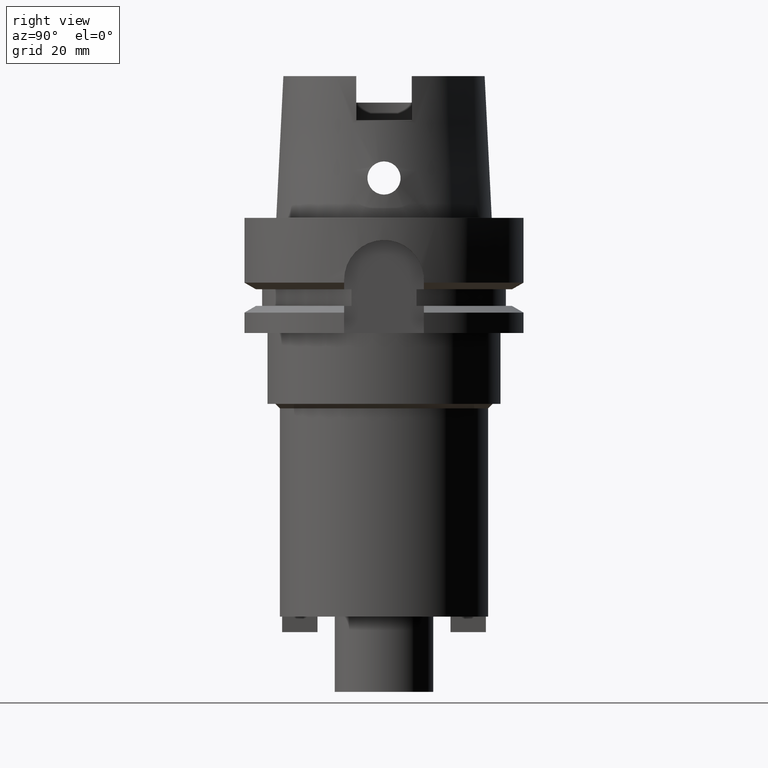
[diagram: clean part render]
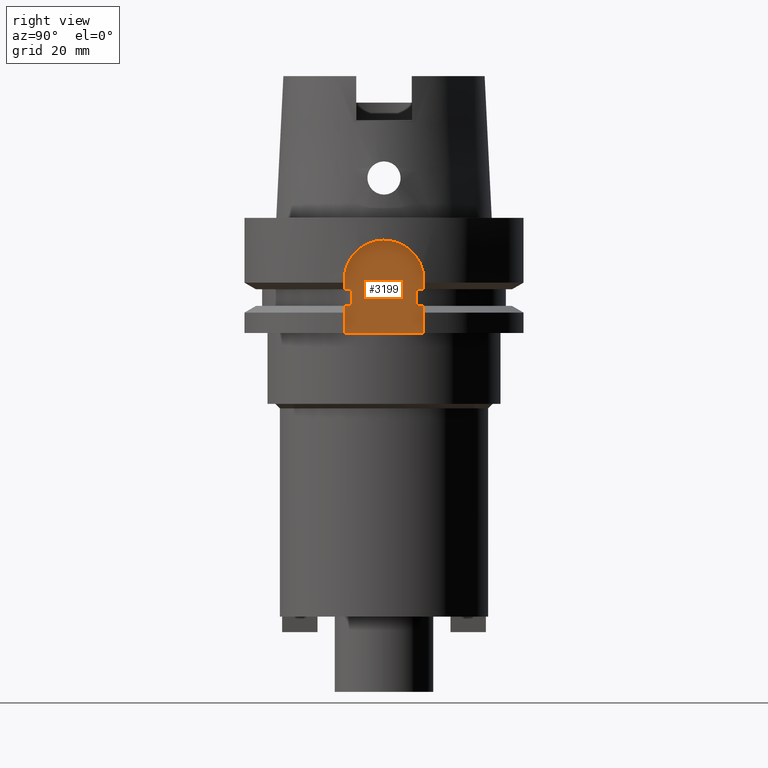
[diagram: same view with one face highlighted and labeled with its STEP entity id]
A machine part, right view. The second image highlights one B-rep face of the part: STEP entity #3199.
In plain terms, the highlighted planar face has unit normal (1, 0, 0).
Its self-contained STEP definition (entity closure, byte-faithful):
#723=DIRECTION('',(2.366280491871E-14,1.E0,0.E0));
#724=VECTOR('',#723,1.651530771650E0);
#725=CARTESIAN_POINT('',(2.65E1,7.348469228350E0,-1.6125E1));
#726=LINE('',#725,#724);
#885=DIRECTION('',(-2.366280491871E-14,1.E0,0.E0));
#886=VECTOR('',#885,1.651530771650E0);
#887=CARTESIAN_POINT('',(2.65E1,-9.E0,-1.6125E1));
#888=LINE('',#887,#886);
#983=DIRECTION('',(0.E0,1.E0,0.E0));
#984=VECTOR('',#983,1.8E1);
#985=CARTESIAN_POINT('',(2.65E1,-9.E0,-2.6E1));
#986=LINE('',#985,#984);
#1067=DIRECTION('',(0.E0,0.E0,1.E0));
#1068=VECTOR('',#1067,6.125E0);
#1069=CARTESIAN_POINT('',(2.65E1,-9.E0,-2.6E1));
#1070=LINE('',#1069,#1068);
#1074=DIRECTION('',(-2.366280491871E-14,1.E0,0.E0));
#1075=VECTOR('',#1074,1.651530771650E0);
#1076=CARTESIAN_POINT('',(2.65E1,-9.E0,-1.9875E1));
#1077=LINE('',#1076,#1075);
#1081=DIRECTION('',(0.E0,0.E0,1.E0));
#1082=VECTOR('',#1081,2.125E0);
#1083=CARTESIAN_POINT('',(2.65E1,-9.E0,-1.6125E1));
#1084=LINE('',#1083,#1082);
#1088=CARTESIAN_POINT('',(2.65E1,0.E0,-1.4E1));
#1089=DIRECTION('',(-1.E0,0.E0,0.E0));
#1090=DIRECTION('',(0.E0,-1.E0,0.E0));
#1091=AXIS2_PLACEMENT_3D('',#1088,#1089,#1090);
#1096=CARTESIAN_POINT('',(2.65E1,0.E0,-1.4E1));
#1097=DIRECTION('',(-1.E0,0.E0,0.E0));
#1098=DIRECTION('',(0.E0,0.E0,1.E0));
#1099=AXIS2_PLACEMENT_3D('',#1096,#1097,#1098);
#1104=DIRECTION('',(0.E0,0.E0,-1.E0));
#1105=VECTOR('',#1104,2.125E0);
#1106=CARTESIAN_POINT('',(2.65E1,9.E0,-1.4E1));
#1107=LINE('',#1106,#1105);
#1111=DIRECTION('',(2.366280491871E-14,1.E0,0.E0));
#1112=VECTOR('',#1111,1.651530771650E0);
#1113=CARTESIAN_POINT('',(2.65E1,7.348469228350E0,-1.9875E1));
#1114=LINE('',#1113,#1112);
#1118=DIRECTION('',(0.E0,0.E0,-1.E0));
#1119=VECTOR('',#1118,6.125E0);
#1120=CARTESIAN_POINT('',(2.65E1,9.E0,-1.9875E1));
#1121=LINE('',#1120,#1119);
#1213=DIRECTION('',(0.E0,0.E0,-1.E0));
#1214=VECTOR('',#1213,3.75E0);
#1215=CARTESIAN_POINT('',(2.65E1,-7.348469228350E0,-1.6125E1));
#1216=LINE('',#1215,#1214);
#1389=DIRECTION('',(0.E0,0.E0,1.E0));
#1390=VECTOR('',#1389,3.75E0);
#1391=CARTESIAN_POINT('',(2.65E1,7.348469228350E0,-1.9875E1));
#1392=LINE('',#1391,#1390);
#2280=CARTESIAN_POINT('',(2.65E1,-9.E0,-2.6E1));
#2281=VERTEX_POINT('',#2280);
#2282=CARTESIAN_POINT('',(2.65E1,9.E0,-2.6E1));
#2283=VERTEX_POINT('',#2282);
#2402=CARTESIAN_POINT('',(2.65E1,-7.348469228350E0,-1.9875E1));
#2404=VERTEX_POINT('',#2402);
#2405=CARTESIAN_POINT('',(2.65E1,-9.E0,-1.9875E1));
#2406=VERTEX_POINT('',#2405);
#2417=CARTESIAN_POINT('',(2.65E1,9.E0,-1.9875E1));
#2418=VERTEX_POINT('',#2417);
#2419=CARTESIAN_POINT('',(2.65E1,7.348469228350E0,-1.9875E1));
#2420=VERTEX_POINT('',#2419);
#2459=CARTESIAN_POINT('',(2.65E1,-9.E0,-1.6125E1));
#2461=VERTEX_POINT('',#2459);
#2466=CARTESIAN_POINT('',(2.65E1,-9.E0,-1.4E1));
#2467=VERTEX_POINT('',#2466);
#2468=CARTESIAN_POINT('',(2.65E1,-7.348469228350E0,-1.6125E1));
#2469=VERTEX_POINT('',#2468);
#2470=CARTESIAN_POINT('',(2.65E1,0.E0,-5.E0));
#2471=CARTESIAN_POINT('',(2.65E1,9.E0,-1.4E1));
#2472=VERTEX_POINT('',#2470);
#2473=VERTEX_POINT('',#2471);
#2474=CARTESIAN_POINT('',(2.65E1,9.E0,-1.6125E1));
#2475=VERTEX_POINT('',#2474);
#2476=CARTESIAN_POINT('',(2.65E1,7.348469228350E0,-1.6125E1));
#2477=VERTEX_POINT('',#2476);
#3170=CARTESIAN_POINT('',(2.65E1,0.E0,0.E0));
#3171=DIRECTION('',(1.E0,0.E0,0.E0));
#3172=DIRECTION('',(0.E0,0.E0,1.E0));
#3173=AXIS2_PLACEMENT_3D('',#3170,#3171,#3172);
#3174=PLANE('',#3173);
#3175=ORIENTED_EDGE('',*,*,#3103,.F.);
#3177=ORIENTED_EDGE('',*,*,#3176,.T.);
#3179=ORIENTED_EDGE('',*,*,#3178,.T.);
#3181=ORIENTED_EDGE('',*,*,#3180,.F.);
#3182=ORIENTED_EDGE('',*,*,#3044,.F.);
#3184=ORIENTED_EDGE('',*,*,#3183,.T.);
#3186=ORIENTED_EDGE('',*,*,#3185,.T.);
#3188=ORIENTED_EDGE('',*,*,#3187,.T.);
#3190=ORIENTED_EDGE('',*,*,#3189,.T.);
#3191=ORIENTED_EDGE('',*,*,#2933,.F.);
#3193=ORIENTED_EDGE('',*,*,#3192,.F.);
#3195=ORIENTED_EDGE('',*,*,#3194,.T.);
#3196=ORIENTED_EDGE('',*,*,#3160,.T.);
#3197=EDGE_LOOP('',(#3175,#3177,#3179,#3181,#3182,#3184,#3186,#3188,#3190,#3191,
#3193,#3195,#3196));
#3198=FACE_OUTER_BOUND('',#3197,.F.);
#1092=CIRCLE('',#1091,9.E0);
#1100=CIRCLE('',#1099,9.E0);
#2933=EDGE_CURVE('',#2477,#2475,#726,.T.);
#3044=EDGE_CURVE('',#2461,#2469,#888,.T.);
#3103=EDGE_CURVE('',#2281,#2283,#986,.T.);
#3160=EDGE_CURVE('',#2418,#2283,#1121,.T.);
#3176=EDGE_CURVE('',#2281,#2406,#1070,.T.);
#3178=EDGE_CURVE('',#2406,#2404,#1077,.T.);
#3180=EDGE_CURVE('',#2469,#2404,#1216,.T.);
#3183=EDGE_CURVE('',#2461,#2467,#1084,.T.);
#3185=EDGE_CURVE('',#2467,#2472,#1092,.T.);
#3187=EDGE_CURVE('',#2472,#2473,#1100,.T.);
#3189=EDGE_CURVE('',#2473,#2475,#1107,.T.);
#3192=EDGE_CURVE('',#2420,#2477,#1392,.T.);
#3194=EDGE_CURVE('',#2420,#2418,#1114,.T.);
#3199=ADVANCED_FACE('',(#3198),#3174,.T.);